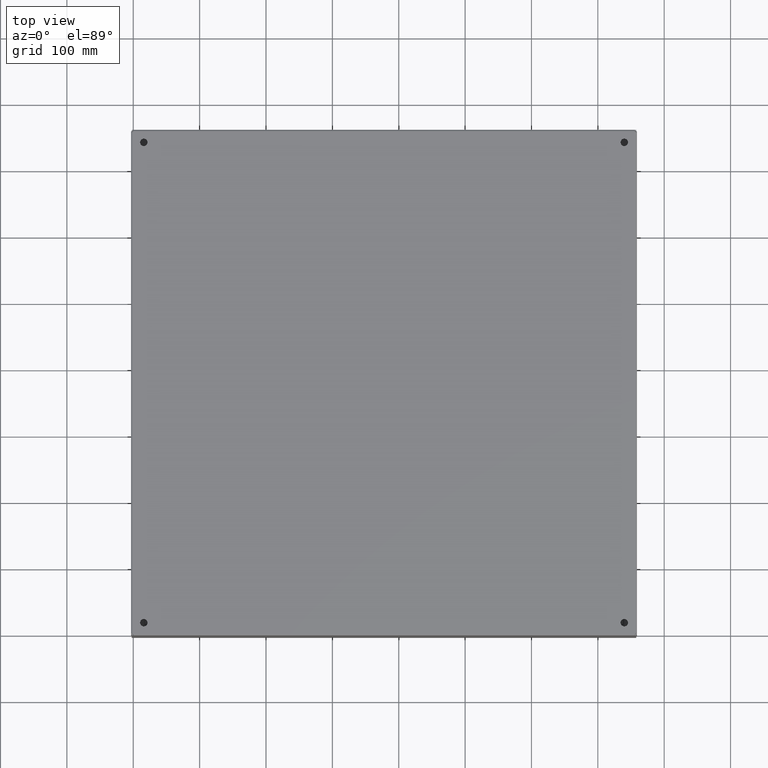
[diagram: clean part render]
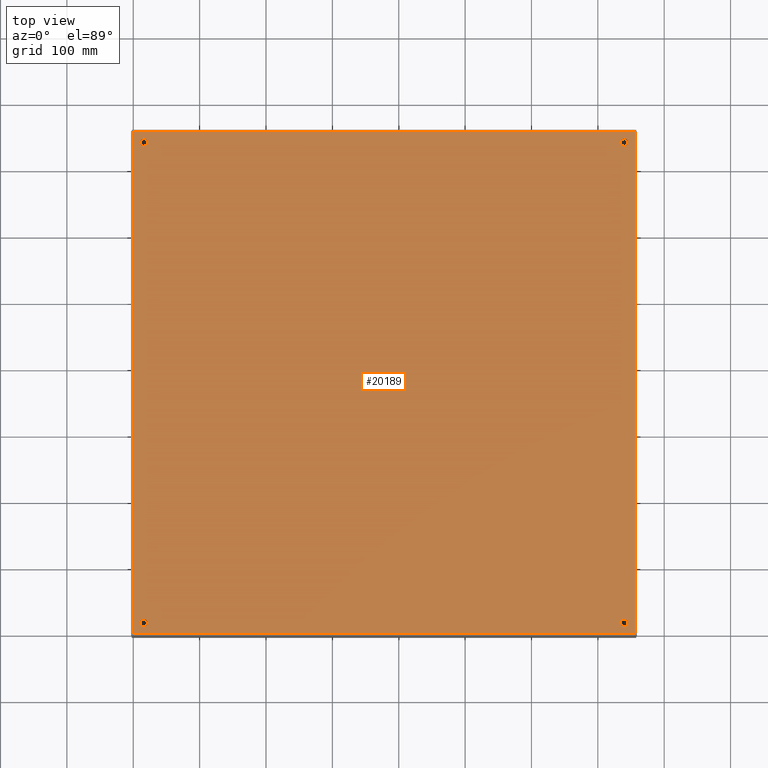
[diagram: same view with one face highlighted and labeled with its STEP entity id]
A machine part, top view. The second image highlights one B-rep face of the part: STEP entity #20189.
In plain terms, the highlighted planar face has unit normal (0, -0, -1).
Its self-contained STEP definition (entity closure, byte-faithful):
#15298=CARTESIAN_POINT('',(0.531249999999996,0.750000000000002,0.0));
#15299=VERTEX_POINT('',#15298);
#15300=CARTESIAN_POINT('',(0.749999999999996,0.750000000000002,0.0));
#15301=DIRECTION('',(0.0,0.0,1.0));
#15302=DIRECTION('',(1.0,0.0,0.0));
#15303=AXIS2_PLACEMENT_3D('',#15300,#15301,#15302);
#15304=CIRCLE('',#15303,0.218750000000000);
#15305=EDGE_CURVE('',#15299,#15299,#15304,.T.);
#15326=CARTESIAN_POINT('',(29.031249999999972,0.750000000000002,0.0));
#15327=VERTEX_POINT('',#15326);
#15328=CARTESIAN_POINT('',(29.249999999999975,0.750000000000002,0.0));
#15329=DIRECTION('',(0.0,0.0,1.0));
#15330=DIRECTION('',(1.0,0.0,0.0));
#15331=AXIS2_PLACEMENT_3D('',#15328,#15329,#15330);
#15332=CIRCLE('',#15331,0.218750000000000);
#15333=EDGE_CURVE('',#15327,#15327,#15332,.T.);
#15354=CARTESIAN_POINT('',(0.531249999999997,29.250000000000014,0.0));
#15355=VERTEX_POINT('',#15354);
#15356=CARTESIAN_POINT('',(0.749999999999997,29.250000000000014,0.0));
#15357=DIRECTION('',(0.0,0.0,1.0));
#15358=DIRECTION('',(1.0,0.0,0.0));
#15359=AXIS2_PLACEMENT_3D('',#15356,#15357,#15358);
#15360=CIRCLE('',#15359,0.218750000000000);
#15361=EDGE_CURVE('',#15355,#15355,#15360,.T.);
#15382=CARTESIAN_POINT('',(29.031249999999972,29.250000000000014,0.0));
#15383=VERTEX_POINT('',#15382);
#15384=CARTESIAN_POINT('',(29.249999999999975,29.250000000000014,0.0));
#15385=DIRECTION('',(0.0,0.0,1.0));
#15386=DIRECTION('',(1.0,0.0,0.0));
#15387=AXIS2_PLACEMENT_3D('',#15384,#15385,#15386);
#15388=CIRCLE('',#15387,0.218750000000000);
#15389=EDGE_CURVE('',#15383,#15383,#15388,.T.);
#18967=CARTESIAN_POINT('',(29.894749999999995,29.882766839324393,0.0));
#18968=VERTEX_POINT('',#18967);
#19065=CARTESIAN_POINT('',(29.894749999999995,0.117233160675640,0.0));
#19066=VERTEX_POINT('',#19065);
#19109=CARTESIAN_POINT('',(29.894749999999995,29.882766839324393,0.0));
#19110=DIRECTION('',(0.0,-1.0,0.0));
#19111=VECTOR('',#19110,29.765533678648755);
#19112=LINE('',#19109,#19111);
#19113=EDGE_CURVE('',#18968,#19066,#19112,.T.);
#19284=CARTESIAN_POINT('',(0.117233160675618,29.894750000000009,5.594825E-015));
#19285=VERTEX_POINT('',#19284);
#19382=CARTESIAN_POINT('',(29.882766839324383,29.894750000000009,0.0));
#19383=VERTEX_POINT('',#19382);
#19426=CARTESIAN_POINT('',(0.117233160675618,29.894750000000009,0.0));
#19427=DIRECTION('',(1.0,0.0,0.0));
#19428=VECTOR('',#19427,29.765533678648765);
#19429=LINE('',#19426,#19428);
#19430=EDGE_CURVE('',#19285,#19383,#19429,.T.);
#19597=CARTESIAN_POINT('',(0.105250000000006,0.117233160675641,0.0));
#19598=VERTEX_POINT('',#19597);
#19695=CARTESIAN_POINT('',(0.105249999999997,29.882766839324383,0.0));
#19696=VERTEX_POINT('',#19695);
#19739=CARTESIAN_POINT('',(0.105250000000006,0.117233160675640,0.0));
#19740=DIRECTION('',(0.0,1.0,0.0));
#19741=VECTOR('',#19740,29.765533678648744);
#19742=LINE('',#19739,#19741);
#19743=EDGE_CURVE('',#19598,#19696,#19742,.T.);
#19910=CARTESIAN_POINT('',(29.882766839324354,0.105250000000001,0.0));
#19911=VERTEX_POINT('',#19910);
#19966=CARTESIAN_POINT('',(0.117233160675645,0.105250000000001,0.0));
#19967=VERTEX_POINT('',#19966);
#19981=CARTESIAN_POINT('',(29.882766839324354,0.105250000000001,0.0));
#19982=DIRECTION('',(-1.0,0.0,0.0));
#19983=VECTOR('',#19982,29.765533678648708);
#19984=LINE('',#19981,#19983);
#19985=EDGE_CURVE('',#19911,#19967,#19984,.T.);
#20076=CARTESIAN_POINT('',(0.062108078884584,0.062108078884584,0.0));
#20077=DIRECTION('',(0.0,0.0,1.0));
#20078=DIRECTION('',(1.0,0.0,0.0));
#20079=AXIS2_PLACEMENT_3D('',#20076,#20077,#20078);
#20080=CIRCLE('',#20079,0.070000000000000);
#20081=EDGE_CURVE('',#19967,#19598,#20080,.T.);
#20138=CARTESIAN_POINT('',(29.937891921115416,0.062108078884581,0.0));
#20139=DIRECTION('',(0.0,0.0,1.0));
#20140=DIRECTION('',(1.0,0.0,0.0));
#20141=AXIS2_PLACEMENT_3D('',#20138,#20139,#20140);
#20142=CIRCLE('',#20141,0.070000000000000);
#20143=EDGE_CURVE('',#19066,#19911,#20142,.T.);
#20150=CARTESIAN_POINT('',(14.999999999999996,15.000000000000007,0.0));
#20151=DIRECTION('',(0.0,0.0,1.0));
#20152=DIRECTION('',(1.0,0.0,0.0));
#20153=AXIS2_PLACEMENT_3D('',#20150,#20151,#20152);
#20154=PLANE('',#20153);
#20155=ORIENTED_EDGE('',*,*,#19985,.T.);
#20156=ORIENTED_EDGE('',*,*,#20081,.T.);
#20157=ORIENTED_EDGE('',*,*,#19743,.T.);
#20158=CARTESIAN_POINT('',(0.062108078884559,29.937891921115426,0.0));
#20159=DIRECTION('',(0.0,0.0,1.0));
#20160=DIRECTION('',(1.0,0.0,0.0));
#20161=AXIS2_PLACEMENT_3D('',#20158,#20159,#20160);
#20162=CIRCLE('',#20161,0.070000000000000);
#20163=EDGE_CURVE('',#19696,#19285,#20162,.T.);
#20164=ORIENTED_EDGE('',*,*,#20163,.T.);
#20165=ORIENTED_EDGE('',*,*,#19430,.T.);
#20166=CARTESIAN_POINT('',(29.937891921115433,29.937891921115437,0.0));
#20167=DIRECTION('',(0.0,0.0,1.0));
#20168=DIRECTION('',(1.0,0.0,0.0));
#20169=AXIS2_PLACEMENT_3D('',#20166,#20167,#20168);
#20170=CIRCLE('',#20169,0.070000000000000);
#20171=EDGE_CURVE('',#19383,#18968,#20170,.T.);
#20172=ORIENTED_EDGE('',*,*,#20171,.T.);
#20173=ORIENTED_EDGE('',*,*,#19113,.T.);
#20174=ORIENTED_EDGE('',*,*,#20143,.T.);
#20175=EDGE_LOOP('',(#20155,#20156,#20157,#20164,#20165,#20172,#20173,#20174));
#20176=FACE_OUTER_BOUND('',#20175,.T.);
#20177=ORIENTED_EDGE('',*,*,#15305,.T.);
#20178=EDGE_LOOP('',(#20177));
#20179=FACE_BOUND('',#20178,.T.);
#20180=ORIENTED_EDGE('',*,*,#15333,.T.);
#20181=EDGE_LOOP('',(#20180));
#20182=FACE_BOUND('',#20181,.T.);
#20183=ORIENTED_EDGE('',*,*,#15361,.T.);
#20184=EDGE_LOOP('',(#20183));
#20185=FACE_BOUND('',#20184,.T.);
#20186=ORIENTED_EDGE('',*,*,#15389,.T.);
#20187=EDGE_LOOP('',(#20186));
#20188=FACE_BOUND('',#20187,.T.);
#20189=ADVANCED_FACE('',(#20176,#20179,#20182,#20185,#20188),#20154,.F.);